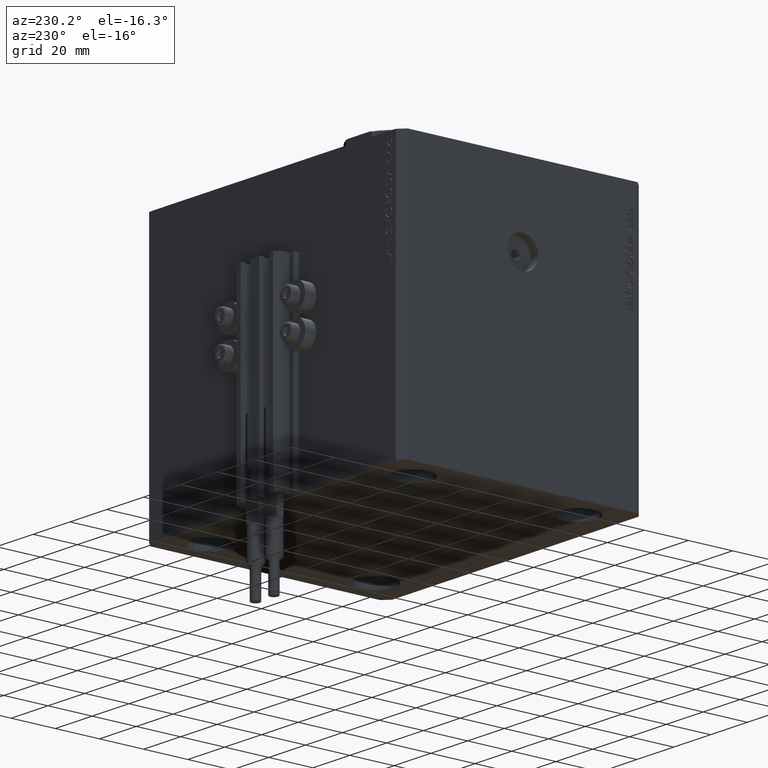
[diagram: clean part render]
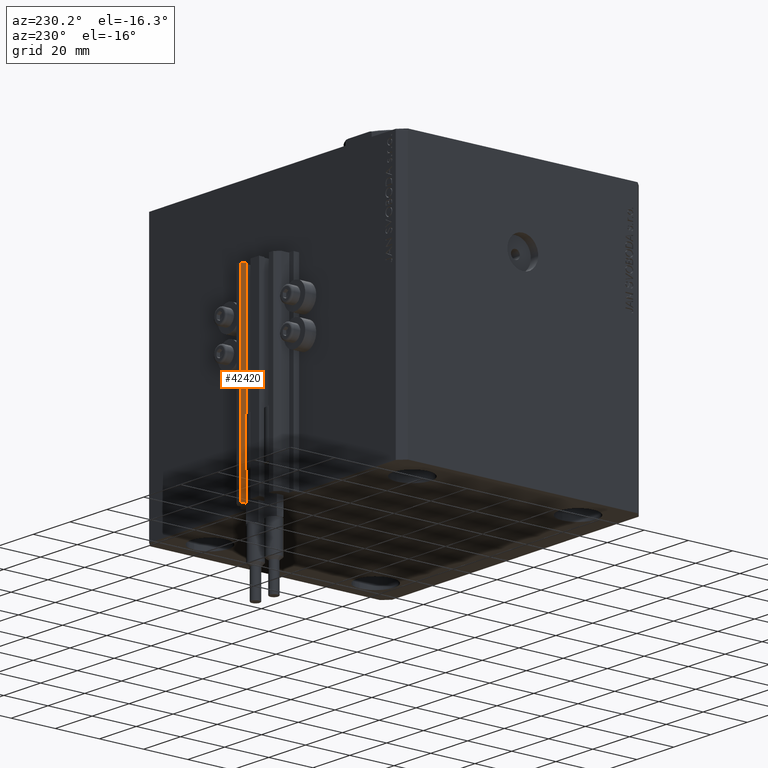
[diagram: same view with one face highlighted and labeled with its STEP entity id]
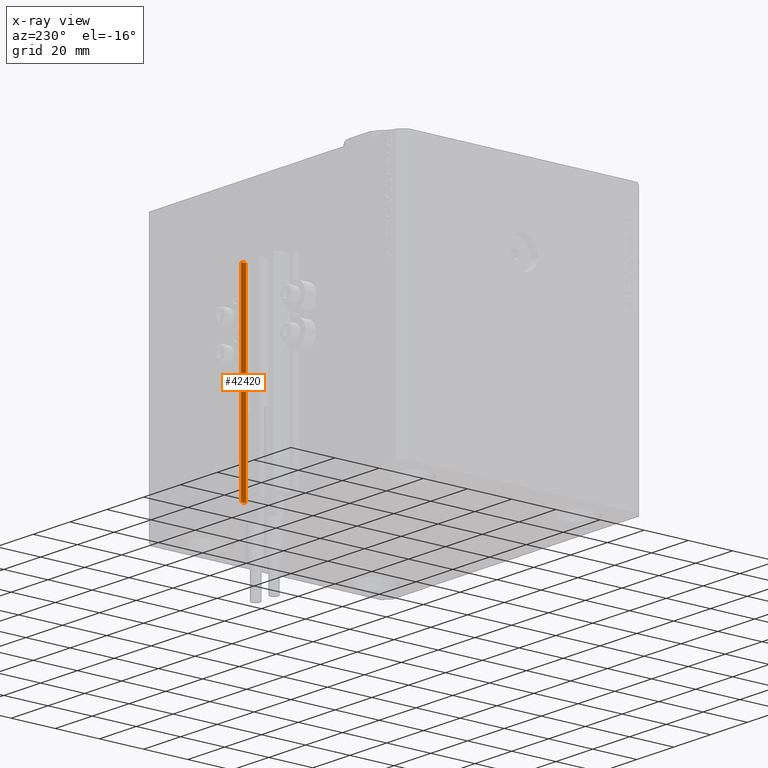
[diagram: x-ray of the same camera — body ghosted, the highlighted face saturated]
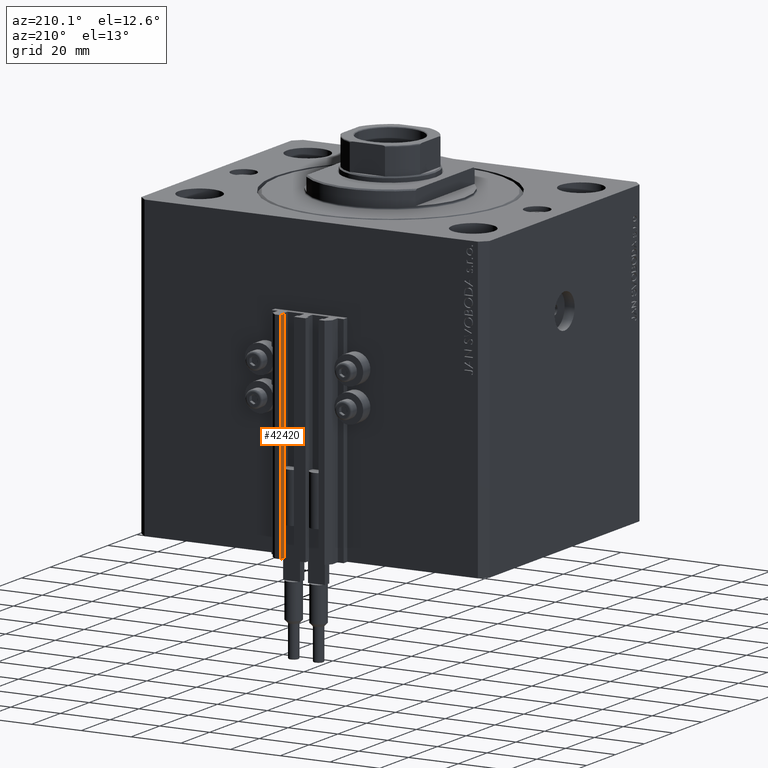
[diagram: same view with one face highlighted and labeled with its STEP entity id]
A machine part, auxiliary view. The second image highlights one B-rep face of the part: STEP entity #42420.
The next image is the same camera in x-ray: the body ghosted, the highlighted face saturated — about 0% of this face is hidden behind the body in this view.
A second angle (auxiliary view) of the same face is appended — the face is thin or edge-on in the first view.
In plain terms, the highlighted planar face has unit normal (-1, 0, 0).
Its self-contained STEP definition (entity closure, byte-faithful):
#559 = LINE ( 'NONE', #3731, #16320 ) ;
#2591 = FACE_OUTER_BOUND ( 'NONE', #5762, .T. ) ;
#3731 = CARTESIAN_POINT ( 'NONE',  ( 7.649999999999998579, 63.00000000000002842, -120.0000000000000000 ) ) ;
#4230 = CARTESIAN_POINT ( 'NONE',  ( 7.649999999999998579, 63.00000000000002842, -120.0000000000000000 ) ) ;
#4926 = VERTEX_POINT ( 'NONE', #4230 ) ;
#5762 = EDGE_LOOP ( 'NONE', ( #43483, #13827, #20827, #9337 ) ) ;
#5832 = CARTESIAN_POINT ( 'NONE',  ( 7.649999999999998579, 60.60000000000002984, -120.0000000000000000 ) ) ;
#9337 = ORIENTED_EDGE ( 'NONE', *, *, #39241, .T. ) ;
#10648 = CARTESIAN_POINT ( 'NONE',  ( 7.649999999999998579, 63.00000000000002842, -33.00000000000000000 ) ) ;
#11163 = EDGE_CURVE ( 'NONE', #4926, #38901, #559, .T. ) ;
#12167 = VERTEX_POINT ( 'NONE', #15667 ) ;
#12620 = DIRECTION ( 'NONE',  ( -1.000000000000000000, 0.000000000000000000, 0.000000000000000000 ) ) ;
#13827 = ORIENTED_EDGE ( 'NONE', *, *, #31736, .F. ) ;
#15667 = CARTESIAN_POINT ( 'NONE',  ( 7.649999999999998579, 60.60000000000002984, -33.00000000000000000 ) ) ;
#16320 = VECTOR ( 'NONE', #37225, 1000.000000000000000 ) ;
#17538 = DIRECTION ( 'NONE',  ( 0.000000000000000000, 0.000000000000000000, 1.000000000000000000 ) ) ;
#17701 = LINE ( 'NONE', #10648, #31217 ) ;
#20458 = LINE ( 'NONE', #37938, #27955 ) ;
#20827 = ORIENTED_EDGE ( 'NONE', *, *, #11163, .T. ) ;
#23049 = CARTESIAN_POINT ( 'NONE',  ( 7.649999999999998579, 63.00000000000002842, -120.0000000000000000 ) ) ;
#25761 = LINE ( 'NONE', #35738, #46481 ) ;
#27168 = PLANE ( 'NONE',  #34288 ) ;
#27257 = DIRECTION ( 'NONE',  ( 0.000000000000000000, 0.000000000000000000, 1.000000000000000000 ) ) ;
#27955 = VECTOR ( 'NONE', #27257, 1000.000000000000000 ) ;
#31217 = VECTOR ( 'NONE', #32508, 1000.000000000000000 ) ;
#31736 = EDGE_CURVE ( 'NONE', #4926, #43121, #25761, .T. ) ;
#32508 = DIRECTION ( 'NONE',  ( 0.000000000000000000, -1.000000000000000000, 0.000000000000000000 ) ) ;
#34288 = AXIS2_PLACEMENT_3D ( 'NONE', #23049, #12620, #34938 ) ;
#34938 = DIRECTION ( 'NONE',  ( 0.000000000000000000, 0.000000000000000000, 1.000000000000000000 ) ) ;
#35738 = CARTESIAN_POINT ( 'NONE',  ( 7.649999999999998579, 63.00000000000002842, -120.0000000000000000 ) ) ;
#37225 = DIRECTION ( 'NONE',  ( 0.000000000000000000, -1.000000000000000000, 0.000000000000000000 ) ) ;
#37938 = CARTESIAN_POINT ( 'NONE',  ( 7.649999999999998579, 60.60000000000002984, -120.0000000000000000 ) ) ;
#38901 = VERTEX_POINT ( 'NONE', #5832 ) ;
#39241 = EDGE_CURVE ( 'NONE', #38901, #12167, #20458, .T. ) ;
#42420 = ADVANCED_FACE ( 'NONE', ( #2591 ), #27168, .T. ) ;
#43121 = VERTEX_POINT ( 'NONE', #47617 ) ;
#43393 = EDGE_CURVE ( 'NONE', #43121, #12167, #17701, .T. ) ;
#43483 = ORIENTED_EDGE ( 'NONE', *, *, #43393, .F. ) ;
#46481 = VECTOR ( 'NONE', #17538, 1000.000000000000000 ) ;
#47617 = CARTESIAN_POINT ( 'NONE',  ( 7.649999999999998579, 63.00000000000002842, -33.00000000000000000 ) ) ;